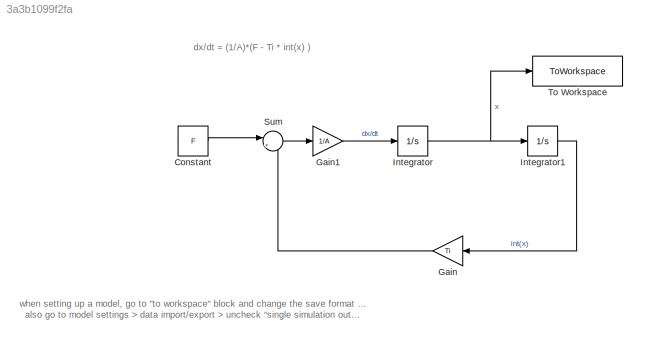
MODEL slx_3a3b1099f2fa
KIND model
CONFIG AbsTol = auto
CONFIG EnableMultiTasking = off
CONFIG FixedStep = auto
CONFIG MaxStep = auto
CONFIG MinStep = auto
CONFIG RelTol = 1e-3
CONFIG SampleTimeConstraint = Unconstrained
CONFIG Solver = VariableStepAuto
CONFIG SolverName = VariableStepAuto
CONFIG StartTime = 0.0
CONFIG StopTime = 10.0
BLOCK [Constant] Constant
  Value = F
BLOCK [Gain] Gain
  Gain = Ti
BLOCK [Gain] Gain1
  Gain = 1/A
BLOCK [Integrator] Integrator
  Ports = [1, 1]
BLOCK [Integrator] Integrator1
  Ports = [1, 1]
BLOCK [Sum] Sum
  Inputs = |+-
  Ports = [2, 1]
BLOCK [ToWorkspace] To Workspace
  FixptAsFi = on
  MaxDataPoints = inf
  Ports = [1]
  SampleTime = -1
  VariableName = output
ANNOTATION (root): dx/dt = (1/A)*(F - Ti * int(x) )
ANNOTATION (root): when setting up a model, go to "to workspace" block and change the save format to "array" also go to model settings > data import/export > uncheck "single simulation output"
LINE Constant:1 -> Sum:1
LINE Gain1:1 -> Integrator:1
LINE Gain:1 -> Sum:2
LINE Integrator1:1 -> Gain:1
NET Integrator:1 -> Integrator1:1, To Workspace:1
LINE Sum:1 -> Gain1:1
note: NET lines group one-source signal fan-out (src -> all destinations, sorted); 1:1 wires keep LINE
